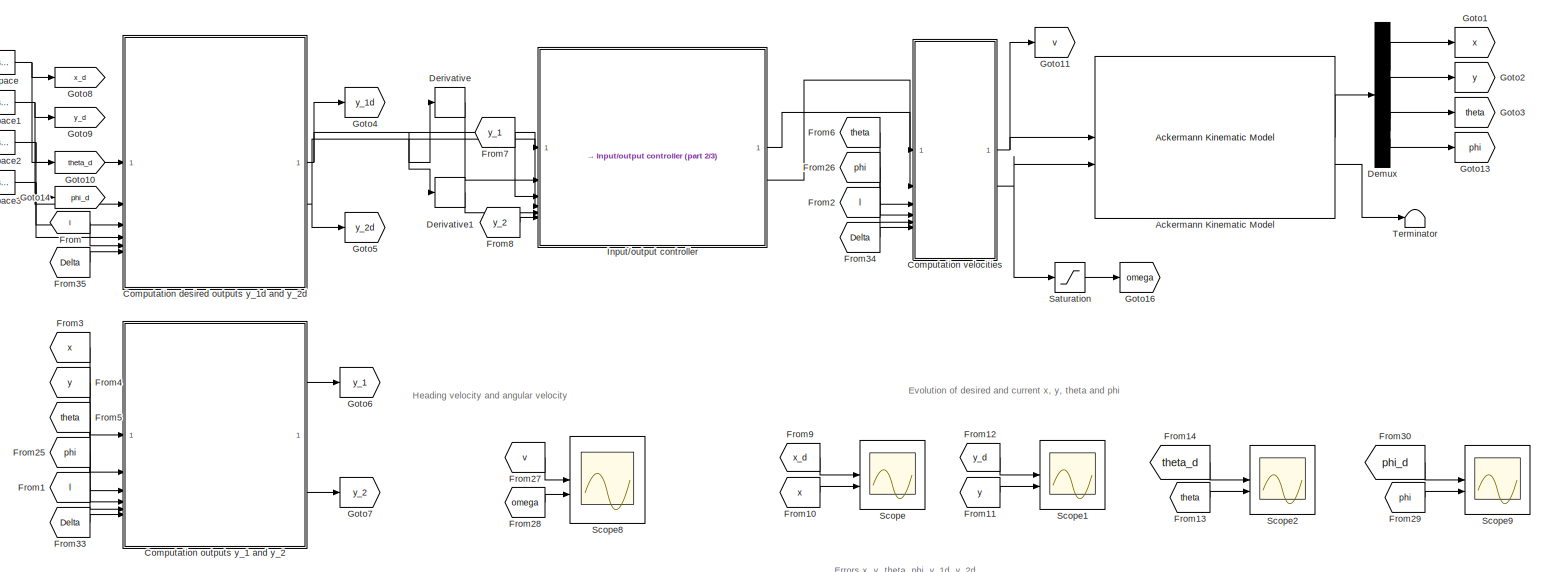
[diagram: root canvas - part 1/3, full width, top band]
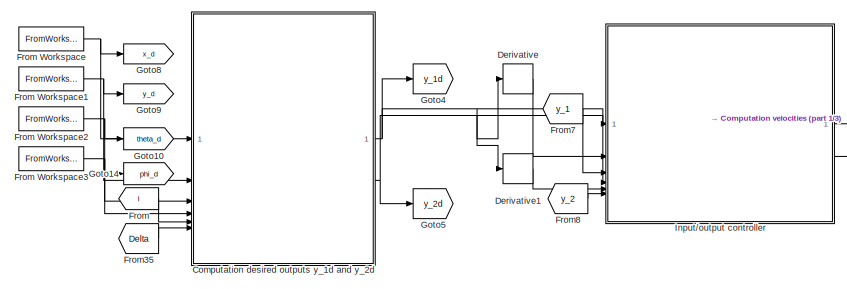
[diagram: root canvas - part 2/3, top left region]
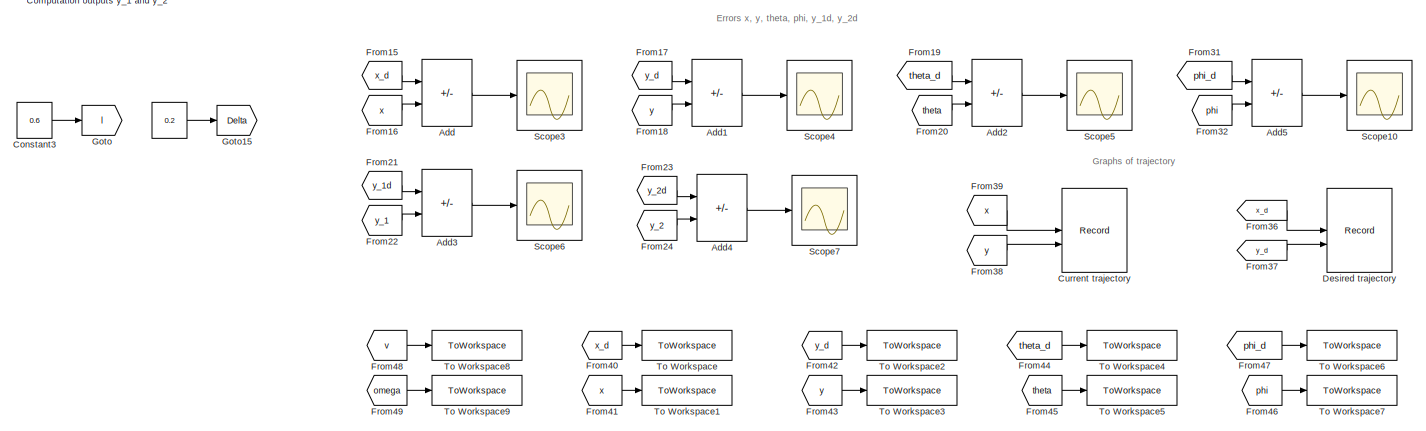
[diagram: root canvas - part 3/3, full width, bottom band]
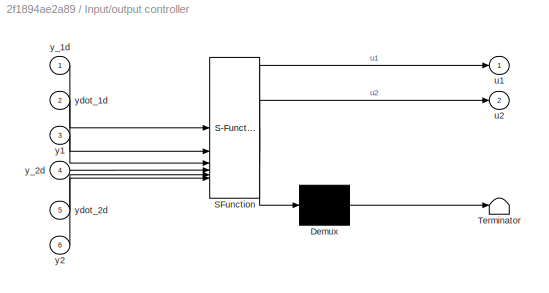
MODEL slx_2f1894ae2a89
KIND model
CONFIG AbsTol = auto
CONFIG EnableMultiTasking = off
CONFIG FixedStep = auto
CONFIG MaxStep = auto
CONFIG MinStep = auto
CONFIG RelTol = 1e-3
CONFIG SampleTimeConstraint = Unconstrained
CONFIG SolverName = VariableStepAuto
CONFIG StartTime = 0.0
CONFIG StopFcn = %plot_trajectory(out.x.Data(:,1), out.y.Data(:,1), 'x [m]', 'y [m]', fullfile('<userpath>\OneDrive - MSFT\Documenti\Personali\Scuola\università\magistrale\2° ANNO\Secondo Semestre\FSR\Project\Software\Images\Paper\Chapter_4_simulation\smooth\simulink', 'current_trajectory.pdf'));\n%plot_trajectory(out.x_d.Data(1,:), out.y_d.Data(1,:), '$x_d$ [m]', '$y_d$ [m]', fullfile('<userpath>\OneDrive - MSFT\D...<+1685ch>
CONFIG StopTime = 200
BLOCK [Constant]  
  Value = 0.2
BLOCK [Reference] Ackermann Kinematic Model   REF=robotmobilelib/Ackermann Kinematic Model
  SourceBlock = robotmobilelib/Ackermann Kinematic Model
  SourceType = Ackermann Kinematic Model
BLOCK [Sum] Add
  IconShape = rectangular
  Inputs = +-
BLOCK [Sum] Add1
  IconShape = rectangular
  Inputs = +-
BLOCK [Sum] Add2
  IconShape = rectangular
  Inputs = +-
BLOCK [Sum] Add3
  IconShape = rectangular
  Inputs = +-
BLOCK [Sum] Add4
  IconShape = rectangular
  Inputs = +-
BLOCK [Sum] Add5
  IconShape = rectangular
  Inputs = +-
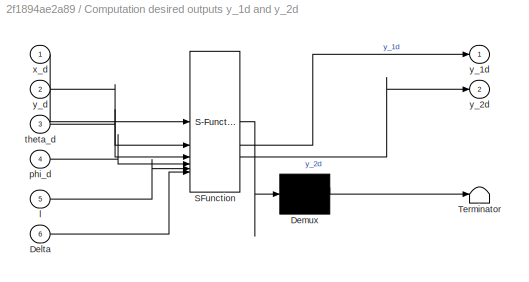
BLOCK [SubSystem] Computation desired outputs y_1d and y_2d
  ErrorFcn = Stateflow.Translate.translate
  PermitHierarchicalResolution = ExplicitOnly
  SFBlockType = MATLAB Function
  TreatAsAtomicUnit = on
BLOCK [Demux] Computation desired outputs y_1d and y_2d/ Demux 
  Outputs = 1
BLOCK [S-Function] Computation desired outputs y_1d and y_2d/ SFunction 
  EnableBusSupport = on
  FunctionName = sf_sfun
  PortCounts = [6 3]
  SFcnIsStateOwnerBlock = off
  SFunctionDeploymentMode = off
  Tag = Stateflow S-Function 1
BLOCK [Terminator] Computation desired outputs y_1d and y_2d/ Terminator 
BLOCK [Inport] Computation desired outputs y_1d and y_2d/Delta
  Port = 6
BLOCK [Inport] Computation desired outputs y_1d and y_2d/l
  Port = 5
BLOCK [Inport] Computation desired outputs y_1d and y_2d/phi_d
  Port = 4
BLOCK [Inport] Computation desired outputs y_1d and y_2d/theta_d
  Port = 3
BLOCK [Inport] Computation desired outputs y_1d and y_2d/x_d
BLOCK [Outport] Computation desired outputs y_1d and y_2d/y_1d
BLOCK [Outport] Computation desired outputs y_1d and y_2d/y_2d
  Port = 2
BLOCK [Inport] Computation desired outputs y_1d and y_2d/y_d
  Port = 2
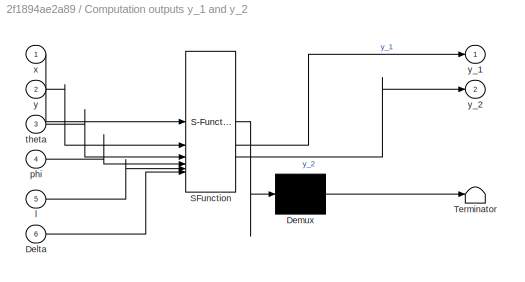
BLOCK [SubSystem] Computation outputs y_1 and y_2
  ErrorFcn = Stateflow.Translate.translate
  PermitHierarchicalResolution = ExplicitOnly
  SFBlockType = MATLAB Function
  TreatAsAtomicUnit = on
BLOCK [Demux] Computation outputs y_1 and y_2/ Demux 
  Outputs = 1
BLOCK [S-Function] Computation outputs y_1 and y_2/ SFunction 
  EnableBusSupport = on
  FunctionName = sf_sfun
  PortCounts = [6 3]
  SFcnIsStateOwnerBlock = off
  SFunctionDeploymentMode = off
  Tag = Stateflow S-Function 4
BLOCK [Terminator] Computation outputs y_1 and y_2/ Terminator 
BLOCK [Inport] Computation outputs y_1 and y_2/Delta
  Port = 6
BLOCK [Inport] Computation outputs y_1 and y_2/l
  Port = 5
BLOCK [Inport] Computation outputs y_1 and y_2/phi
  Port = 4
BLOCK [Inport] Computation outputs y_1 and y_2/theta
  Port = 3
BLOCK [Inport] Computation outputs y_1 and y_2/x
BLOCK [Inport] Computation outputs y_1 and y_2/y
  Port = 2
BLOCK [Outport] Computation outputs y_1 and y_2/y_1
BLOCK [Outport] Computation outputs y_1 and y_2/y_2
  Port = 2
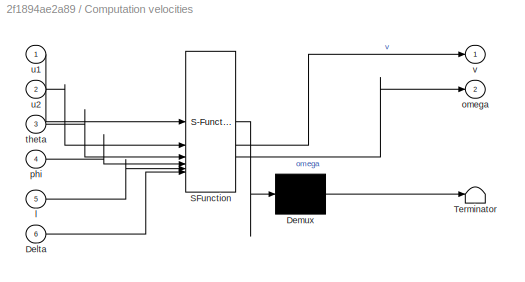
BLOCK [SubSystem] Computation velocities
  ErrorFcn = Stateflow.Translate.translate
  PermitHierarchicalResolution = ExplicitOnly
  SFBlockType = MATLAB Function
  TreatAsAtomicUnit = on
BLOCK [Demux] Computation velocities/ Demux 
  Outputs = 1
BLOCK [S-Function] Computation velocities/ SFunction 
  EnableBusSupport = on
  FunctionName = sf_sfun
  PortCounts = [6 3]
  SFcnIsStateOwnerBlock = off
  SFunctionDeploymentMode = off
  Tag = Stateflow S-Function 2
BLOCK [Terminator] Computation velocities/ Terminator 
BLOCK [Inport] Computation velocities/Delta
  Port = 6
BLOCK [Inport] Computation velocities/l
  Port = 5
BLOCK [Outport] Computation velocities/omega
  Port = 2
BLOCK [Inport] Computation velocities/phi
  Port = 4
BLOCK [Inport] Computation velocities/theta
  Port = 3
BLOCK [Inport] Computation velocities/u1
BLOCK [Inport] Computation velocities/u2
  Port = 2
BLOCK [Outport] Computation velocities/v
BLOCK [Constant] Constant3
  Value = 0.6
BLOCK [Record] Current trajectory
  CompatibilityTag = XY
  FileSettingsInternal = {"entries":[{"content":{"excelSettings":{"content":{},"type":"Streamout.ExcelSettings"}},"type":"Streamout.FileSettingStorage","uuid":""}],"packageUris":["http:\/\/schema.mathworks.com\/mf0\/streamout_blocks\/R2020a"],"version":"1.0"}
  Layout = [1 1]
  SignalsInternal = {"entries":[{"content":{"signals":[{"content":{"blockPath":[],"dimensions":[1],"domain":"","lineColor":"#edb120","plots":[1],"port":1,"signalID":32,"signalName":"From39"},"type":"RecordBlkView.Signal","uuid":""},{"content":{"blockPath":[],"dimensions":[1],"domain":"","lineColor":"#7e2f8e","plots":[1],"port":2,"signalID":35,"signalName":"From38"},"type":"RecordBlkView.Signal","uuid":""}]},"type":"R...<+134ch>
  VisualizationBindings = {"xyplotplugin":{"info":[{"series":[{"bindingParametersList":[{"parameter":"X-Axis","signalID":32,"signalName":"From39"},{"parameter":"Y-Axis","signalID":35,"signalName":"From38"}],"seriesID":35682}],"subplotID":1}]}}
BLOCK [Demux] Demux
BLOCK [Derivative] Derivative
BLOCK [Derivative] Derivative1
BLOCK [Record] Desired trajectory
  CompatibilityTag = XY
  FileSettingsInternal = {"entries":[{"content":{"excelSettings":{"content":{},"type":"Streamout.ExcelSettings"}},"type":"Streamout.FileSettingStorage","uuid":""}],"packageUris":["http:\/\/schema.mathworks.com\/mf0\/streamout_blocks\/R2020a"],"version":"1.0"}
  Layout = [1 1]
  SignalsInternal = {"entries":[{"content":{"signals":[{"content":{"blockPath":[],"dimensions":[1,1],"domain":"","lineColor":"#77ac30","plots":[1],"port":1,"signalID":24,"signalName":"From36"},"type":"RecordBlkView.Signal","uuid":""},{"content":{"blockPath":[],"dimensions":[1,1],"domain":"","lineColor":"#4dbeee","plots":[1],"port":2,"signalID":27,"signalName":"From37"},"type":"RecordBlkView.Signal","uuid":""}]},"type...<+138ch>
  VisualizationBindings = {"xyplotplugin":{"info":[{"series":[{"bindingParametersList":[{"parameter":"X-Axis","signalID":24,"signalName":"From36"},{"parameter":"Y-Axis","signalID":27,"signalName":"From37"}],"seriesID":37876}],"subplotID":1}]}}
BLOCK [From] From
  GotoTag = l
BLOCK [FromWorkspace] From Workspace
  VariableName = xd
BLOCK [FromWorkspace] From Workspace1
  VariableName = yd
BLOCK [FromWorkspace] From Workspace2
  VariableName = thetad
BLOCK [FromWorkspace] From Workspace3
  VariableName = phid
BLOCK [From] From1
  GotoTag = l
BLOCK [From] From10
  GotoTag = x
BLOCK [From] From11
  GotoTag = y
BLOCK [From] From12
  GotoTag = y_d
BLOCK [From] From13
  GotoTag = theta
BLOCK [From] From14
  GotoTag = theta_d
BLOCK [From] From15
  GotoTag = x_d
BLOCK [From] From16
  GotoTag = x
BLOCK [From] From17
  GotoTag = y_d
BLOCK [From] From18
  GotoTag = y
BLOCK [From] From19
  GotoTag = theta_d
BLOCK [From] From2
  GotoTag = l
BLOCK [From] From20
  GotoTag = theta
BLOCK [From] From21
  GotoTag = y_1d
BLOCK [From] From22
  GotoTag = y_1
BLOCK [From] From23
  GotoTag = y_2d
BLOCK [From] From24
  GotoTag = y_2
BLOCK [From] From25
  GotoTag = phi
BLOCK [From] From26
  GotoTag = phi
BLOCK [From] From27
  GotoTag = v
BLOCK [From] From28
  GotoTag = omega
BLOCK [From] From29
  GotoTag = phi
BLOCK [From] From3
  GotoTag = x
BLOCK [From] From30
  GotoTag = phi_d
BLOCK [From] From31
  GotoTag = phi_d
BLOCK [From] From32
  GotoTag = phi
BLOCK [From] From33
  GotoTag = Delta
BLOCK [From] From34
  GotoTag = Delta
BLOCK [From] From35
  GotoTag = Delta
BLOCK [From] From36
  GotoTag = x_d
BLOCK [From] From37
  GotoTag = y_d
BLOCK [From] From38
  GotoTag = y
BLOCK [From] From39
  GotoTag = x
BLOCK [From] From4
  GotoTag = y
BLOCK [From] From40
  GotoTag = x_d
BLOCK [From] From41
  GotoTag = x
BLOCK [From] From42
  GotoTag = y_d
BLOCK [From] From43
  GotoTag = y
BLOCK [From] From44
  GotoTag = theta_d
BLOCK [From] From45
  GotoTag = theta
BLOCK [From] From46
  GotoTag = phi
BLOCK [From] From47
  GotoTag = phi_d
BLOCK [From] From48
  GotoTag = v
BLOCK [From] From49
  GotoTag = omega
BLOCK [From] From5
  GotoTag = theta
BLOCK [From] From6
  GotoTag = theta
BLOCK [From] From7
  GotoTag = y_1
BLOCK [From] From8
  GotoTag = y_2
BLOCK [From] From9
  GotoTag = x_d
BLOCK [Goto] Goto
  GotoTag = l
BLOCK [Goto] Goto1
  GotoTag = x
BLOCK [Goto] Goto10
  GotoTag = theta_d
BLOCK [Goto] Goto11
  GotoTag = v
BLOCK [Goto] Goto13
  GotoTag = phi
BLOCK [Goto] Goto14
  GotoTag = phi_d
BLOCK [Goto] Goto15
  GotoTag = Delta
BLOCK [Goto] Goto16
  GotoTag = omega
BLOCK [Goto] Goto2
  GotoTag = y
BLOCK [Goto] Goto3
  GotoTag = theta
BLOCK [Goto] Goto4
  GotoTag = y_1d
BLOCK [Goto] Goto5
  GotoTag = y_2d
BLOCK [Goto] Goto6
  GotoTag = y_1
BLOCK [Goto] Goto7
  GotoTag = y_2
BLOCK [Goto] Goto8
  GotoTag = x_d
BLOCK [Goto] Goto9
  GotoTag = y_d
BLOCK [SubSystem] Input//output controller
  ErrorFcn = Stateflow.Translate.translate
  PermitHierarchicalResolution = ExplicitOnly
  SFBlockType = MATLAB Function
  TreatAsAtomicUnit = on
BLOCK [Demux] Input//output controller/ Demux 
  Outputs = 1
BLOCK [S-Function] Input//output controller/ SFunction 
  EnableBusSupport = on
  FunctionName = sf_sfun
  PortCounts = [6 3]
  SFcnIsStateOwnerBlock = off
  SFunctionDeploymentMode = off
  Tag = Stateflow S-Function 3
BLOCK [Terminator] Input//output controller/ Terminator 
BLOCK [Outport] Input//output controller/u1
BLOCK [Outport] Input//output controller/u2
  Port = 2
BLOCK [Inport] Input//output controller/y1
  Port = 3
BLOCK [Inport] Input//output controller/y2
  Port = 6
BLOCK [Inport] Input//output controller/y_1d
BLOCK [Inport] Input//output controller/y_2d
  Port = 4
BLOCK [Inport] Input//output controller/ydot_1d
  Port = 2
BLOCK [Inport] Input//output controller/ydot_2d
  Port = 5
BLOCK [Saturate] Saturation
  LowerLimit = -0.43
  UpperLimit = 0.43
  ZeroCross = off
BLOCK [Scope] Scope
  Floating = off
  NumInputPorts = 2
  ScopeSpecificationString = Simulink.scopes.TimeScopeBlockCfg('CurrentConfiguration', extmgr.ConfigurationSet(extmgr.Configuration('Core','General UI',true,'FigureColor',[1 1 1]),extmgr.Configuration('Core','Source UI',true),extmgr.Configuration('Sources','WiredSimulink',true),extmgr.Configuration('Visuals','Time Domain',true,'SerializedDisplays',{struct('MinYLimReal','0.12499','MaxYLimReal','298.8751','YLabelReal','','MinYL...<+2313ch>
BLOCK [Scope] Scope1
  Floating = off
  NumInputPorts = 2
  ScopeSpecificationString = Simulink.scopes.TimeScopeBlockCfg('CurrentConfiguration', extmgr.ConfigurationSet(extmgr.Configuration('Core','General UI',true,'FigureColor',[1 1 1]),extmgr.Configuration('Core','Source UI',true),extmgr.Configuration('Sources','WiredSimulink',true,'DataLoggingVariableName','ScopeData1'),extmgr.Configuration('Visuals','Time Domain',true,'SerializedDisplays',{struct('MinYLimReal','17.08743','MaxYLi...<+2354ch>
BLOCK [Scope] Scope10
  Floating = off
  NumInputPorts = 1
  ScopeSpecificationString = Simulink.scopes.TimeScopeBlockCfg('CurrentConfiguration', extmgr.ConfigurationSet(extmgr.Configuration('Core','General UI',true,'FigureColor',[1 1 1]),extmgr.Configuration('Core','Source UI',true),extmgr.Configuration('Sources','WiredSimulink',true,'DataLoggingVariableName','ScopeData1'),extmgr.Configuration('Visuals','Time Domain',true,'SerializedDisplays',{struct('MinYLimReal','-0.00018','MaxYLi...<+2292ch>
BLOCK [Scope] Scope2
  Floating = off
  NumInputPorts = 2
  ScopeSpecificationString = Simulink.scopes.TimeScopeBlockCfg('CurrentConfiguration', extmgr.ConfigurationSet(extmgr.Configuration('Core','General UI',true,'FigureColor',[1 1 1]),extmgr.Configuration('Core','Source UI',true),extmgr.Configuration('Sources','WiredSimulink',true,'DataLoggingVariableName','ScopeData2'),extmgr.Configuration('Visuals','Time Domain',true,'SerializedDisplays',{struct('MinYLimReal','-1.88492','MaxYLi...<+2349ch>
BLOCK [Scope] Scope3
  Floating = off
  NumInputPorts = 1
  ScopeSpecificationString = Simulink.scopes.TimeScopeBlockCfg('CurrentConfiguration', extmgr.ConfigurationSet(extmgr.Configuration('Core','General UI',true,'FigureColor',[1 1 1]),extmgr.Configuration('Core','Source UI',true),extmgr.Configuration('Sources','WiredSimulink',true,'DataLoggingVariableName','ScopeData3'),extmgr.Configuration('Visuals','Time Domain',true,'SerializedDisplays',{struct('MinYLimReal','-0.00083','MaxYLi...<+2286ch>
BLOCK [Scope] Scope4
  Floating = off
  NumInputPorts = 1
  ScopeSpecificationString = Simulink.scopes.TimeScopeBlockCfg('CurrentConfiguration', extmgr.ConfigurationSet(extmgr.Configuration('Core','General UI',true,'FigureColor',[1 1 1]),extmgr.Configuration('Core','Source UI',true),extmgr.Configuration('Sources','WiredSimulink',true,'DataLoggingVariableName','ScopeData4'),extmgr.Configuration('Visuals','Time Domain',true,'SerializedDisplays',{struct('MinYLimReal','-0.00318','MaxYLi...<+2284ch>
BLOCK [Scope] Scope5
  Floating = off
  NumInputPorts = 1
  ScopeSpecificationString = Simulink.scopes.TimeScopeBlockCfg('CurrentConfiguration', extmgr.ConfigurationSet(extmgr.Configuration('Core','General UI',true,'FigureColor',[1 1 1]),extmgr.Configuration('Core','Source UI',true),extmgr.Configuration('Sources','WiredSimulink',true,'DataLoggingVariableName','ScopeData5'),extmgr.Configuration('Visuals','Time Domain',true,'SerializedDisplays',{struct('MinYLimReal','-0.000029','MaxYL...<+2275ch>
BLOCK [Scope] Scope6
  Floating = off
  NumInputPorts = 1
  ScopeSpecificationString = Simulink.scopes.TimeScopeBlockCfg('CurrentConfiguration', extmgr.ConfigurationSet(extmgr.Configuration('Core','General UI',true,'FigureColor',[1 1 1]),extmgr.Configuration('Core','Source UI',true),extmgr.Configuration('Sources','WiredSimulink',true,'DataLoggingVariableName','ScopeData6'),extmgr.Configuration('Visuals','Time Domain',true,'SerializedDisplays',{struct('MinYLimReal','-0.00129','MaxYLi...<+2290ch>
BLOCK [Scope] Scope7
  Floating = off
  NumInputPorts = 1
  ScopeSpecificationString = Simulink.scopes.TimeScopeBlockCfg('CurrentConfiguration', extmgr.ConfigurationSet(extmgr.Configuration('Core','General UI',true,'FigureColor',[1 1 1]),extmgr.Configuration('Core','Source UI',true),extmgr.Configuration('Sources','WiredSimulink',true,'DataLoggingVariableName','ScopeData7'),extmgr.Configuration('Visuals','Time Domain',true,'SerializedDisplays',{struct('MinYLimReal','-0.00426','MaxYLi...<+2261ch>
BLOCK [Scope] Scope8
  Floating = off
  NumInputPorts = 2
  ScopeSpecificationString = Simulink.scopes.TimeScopeBlockCfg('CurrentConfiguration', extmgr.ConfigurationSet(extmgr.Configuration('Core','General UI',true,'FigureColor',[1 1 1]),extmgr.Configuration('Core','Source UI',true),extmgr.Configuration('Sources','WiredSimulink',true,'DataLoggingVariableName','ScopeData1'),extmgr.Configuration('Visuals','Time Domain',true,'SerializedDisplays',{struct('MinYLimReal','-0.25157','MaxYLi...<+3202ch>
BLOCK [Scope] Scope9
  Floating = off
  NumInputPorts = 2
  ScopeSpecificationString = Simulink.scopes.TimeScopeBlockCfg('CurrentConfiguration', extmgr.ConfigurationSet(extmgr.Configuration('Core','General UI',true,'FigureColor',[1 1 1]),extmgr.Configuration('Core','Source UI',true),extmgr.Configuration('Sources','WiredSimulink',true,'DataLoggingVariableName','ScopeData1'),extmgr.Configuration('Visuals','Time Domain',true,'SerializedDisplays',{struct('MinYLimReal','-0.13436','MaxYLi...<+2364ch>
BLOCK [Terminator] Terminator
BLOCK [ToWorkspace] To Workspace
  FixptAsFi = on
  MaxDataPoints = inf
  SampleTime = -1
  SaveFormat = Timeseries
  VariableName = x_d
BLOCK [ToWorkspace] To Workspace1
  FixptAsFi = on
  MaxDataPoints = inf
  SampleTime = -1
  SaveFormat = Timeseries
  VariableName = x
BLOCK [ToWorkspace] To Workspace2
  FixptAsFi = on
  MaxDataPoints = inf
  SampleTime = -1
  SaveFormat = Timeseries
  VariableName = y_d
BLOCK [ToWorkspace] To Workspace3
  FixptAsFi = on
  MaxDataPoints = inf
  SampleTime = -1
  SaveFormat = Timeseries
  VariableName = y
BLOCK [ToWorkspace] To Workspace4
  FixptAsFi = on
  MaxDataPoints = inf
  SampleTime = -1
  SaveFormat = Timeseries
  VariableName = theta_d
BLOCK [ToWorkspace] To Workspace5
  FixptAsFi = on
  MaxDataPoints = inf
  SampleTime = -1
  SaveFormat = Timeseries
  VariableName = theta
BLOCK [ToWorkspace] To Workspace6
  FixptAsFi = on
  MaxDataPoints = inf
  SampleTime = -1
  SaveFormat = Timeseries
  VariableName = phi_d
BLOCK [ToWorkspace] To Workspace7
  FixptAsFi = on
  MaxDataPoints = inf
  SampleTime = -1
  SaveFormat = Timeseries
  VariableName = phi
BLOCK [ToWorkspace] To Workspace8
  FixptAsFi = on
  MaxDataPoints = inf
  SampleTime = -1
  SaveFormat = Timeseries
  VariableName = v
BLOCK [ToWorkspace] To Workspace9
  FixptAsFi = on
  MaxDataPoints = inf
  SampleTime = -1
  SaveFormat = Timeseries
  VariableName = omega
ANNOTATION (root): Errors x, y, theta, phi, y_1d, y_2d
ANNOTATION (root): Evolution of desired and current x, y, theta and phi
ANNOTATION (root): Graphs of trajectory
ANNOTATION (root): Heading velocity and angular velocity
LINE  :1 -> Goto15:1
LINE Ackermann Kinematic Model :1 -> Demux:1
LINE Ackermann Kinematic Model :2 -> Terminator:1
LINE Add1:1 -> Scope4:1
LINE Add2:1 -> Scope5:1
LINE Add3:1 -> Scope6:1
LINE Add4:1 -> Scope7:1
LINE Add5:1 -> Scope10:1
LINE Add:1 -> Scope3:1
NET Computation desired outputs y_1d and y_2d:1 -> Derivative:1, Goto4:1, Input//output controller:1
NET Computation desired outputs y_1d and y_2d:2 -> Derivative1:1, Goto5:1, Input//output controller:4
LINE Computation outputs y_1 and y_2:1 -> Goto6:1
LINE Computation outputs y_1 and y_2:2 -> Goto7:1
NET Computation velocities:1 -> Ackermann Kinematic Model :1, Goto11:1
NET Computation velocities:2 -> Ackermann Kinematic Model :2, Saturation:1
LINE Constant3:1 -> Goto:1
LINE Demux:1 -> Goto1:1
LINE Demux:2 -> Goto2:1
LINE Demux:3 -> Goto3:1
LINE Demux:4 -> Goto13:1
LINE Derivative1:1 -> Input//output controller:5
LINE Derivative:1 -> Input//output controller:2
NET From Workspace1:1 -> Computation desired outputs y_1d and y_2d:2, Goto9:1
NET From Workspace2:1 -> Computation desired outputs y_1d and y_2d:3, Goto10:1
NET From Workspace3:1 -> Computation desired outputs y_1d and y_2d:4, Goto14:1
NET From Workspace:1 -> Computation desired outputs y_1d and y_2d:1, Goto8:1
LINE From10:1 -> Scope:2
LINE From11:1 -> Scope1:2
LINE From12:1 -> Scope1:1
LINE From13:1 -> Scope2:2
LINE From14:1 -> Scope2:1
LINE From15:1 -> Add:1
LINE From16:1 -> Add:2
LINE From17:1 -> Add1:1
LINE From18:1 -> Add1:2
LINE From19:1 -> Add2:1
LINE From1:1 -> Computation outputs y_1 and y_2:5
LINE From20:1 -> Add2:2
LINE From21:1 -> Add3:1
LINE From22:1 -> Add3:2
LINE From23:1 -> Add4:1
LINE From24:1 -> Add4:2
LINE From25:1 -> Computation outputs y_1 and y_2:4
LINE From26:1 -> Computation velocities:4
LINE From27:1 -> Scope8:1
LINE From28:1 -> Scope8:2
LINE From29:1 -> Scope9:2
LINE From2:1 -> Computation velocities:5
LINE From30:1 -> Scope9:1
LINE From31:1 -> Add5:1
LINE From32:1 -> Add5:2
LINE From33:1 -> Computation outputs y_1 and y_2:6
LINE From34:1 -> Computation velocities:6
LINE From35:1 -> Computation desired outputs y_1d and y_2d:6
LINE From36:1 -> Desired trajectory:1
LINE From37:1 -> Desired trajectory:2
LINE From38:1 -> Current trajectory:2
LINE From39:1 -> Current trajectory:1
LINE From3:1 -> Computation outputs y_1 and y_2:1
LINE From40:1 -> To Workspace:1
LINE From41:1 -> To Workspace1:1
LINE From42:1 -> To Workspace2:1
LINE From43:1 -> To Workspace3:1
LINE From44:1 -> To Workspace4:1
LINE From45:1 -> To Workspace5:1
LINE From46:1 -> To Workspace7:1
LINE From47:1 -> To Workspace6:1
LINE From48:1 -> To Workspace8:1
LINE From49:1 -> To Workspace9:1
LINE From4:1 -> Computation outputs y_1 and y_2:2
LINE From5:1 -> Computation outputs y_1 and y_2:3
LINE From6:1 -> Computation velocities:3
LINE From7:1 -> Input//output controller:3
LINE From8:1 -> Input//output controller:6
LINE From9:1 -> Scope:1
LINE From:1 -> Computation desired outputs y_1d and y_2d:5
LINE Input//output controller:1 -> Computation velocities:1
LINE Input//output controller:2 -> Computation velocities:2
LINE Saturation:1 -> Goto16:1
note: NET lines group one-source signal fan-out (src -> all destinations, sorted); 1:1 wires keep LINE
CHART Computation desired outputs y_1d and y_2d states=1 transitions=1
  STATE_LABEL 'eML_blk_kernel()'
  STATE_LABEL 'SCRIPT:\nfunction [y_1d, y_2d]  = fcn(x_d, y_d, theta_d, phi_d, l, Delta)\n\ny_1d = x_d+l*cos(theta_d)+Delta*cos(theta_d+phi_d);\ny_2d = y_d+l*sin(theta_d)+Delta*sin(theta_d+phi_d);\n \nend\n'
CHART Computation velocities states=1 transitions=1
  STATE_LABEL 'eML_blk_kernel()'
  STATE_LABEL 'SCRIPT:\nfunction [v, omega] = fcn(u1, u2, theta, phi, l, Delta)\n\nT = [cos(theta)-tan(phi)*(sin(theta)+(Delta*sin(theta+phi))/l) -Delta*sin(theta+phi);\n     sin(theta)+tan(phi)*(cos(theta)+(Delta*cos(theta+phi))/l) +Delta*cos(theta+phi)];\n\nTinv = inv(T);\n\nv = Tinv(1,:)*[u1; u2];\nomega = Tinv(2,:)*[u1; u2];\n\n\nend\n'
CHART Input//output controller states=1 transitions=1
  STATE_LABEL 'eML_blk_kernel()'
  STATE_LABEL 'SCRIPT:\nfunction [u1, u2] = fcn(y_1d, ydot_1d, y1, y_2d, ydot_2d, y2)\n\nk1 = 5; \nk2 = 5; \n\nu1 = ydot_1d+k1*(y_1d-y1);\nu2 = ydot_2d+k2*(y_2d-y2);\n\nend\n'
CHART Computation outputs y_1 and y_2 states=1 transitions=1
  STATE_LABEL 'eML_blk_kernel()'
  STATE_LABEL 'SCRIPT:\nfunction [y_1, y_2]  = fcn(x, y, theta, phi, l, Delta)\n\ny_1 = x+l*cos(theta)+Delta*cos(theta+phi);\ny_2 = y+l*sin(theta)+Delta*sin(theta+phi);\n\nend\n'
CHART  states=0 transitions=0
CHART  states=0 transitions=0
CHART  states=0 transitions=0
CHART  states=0 transitions=0
